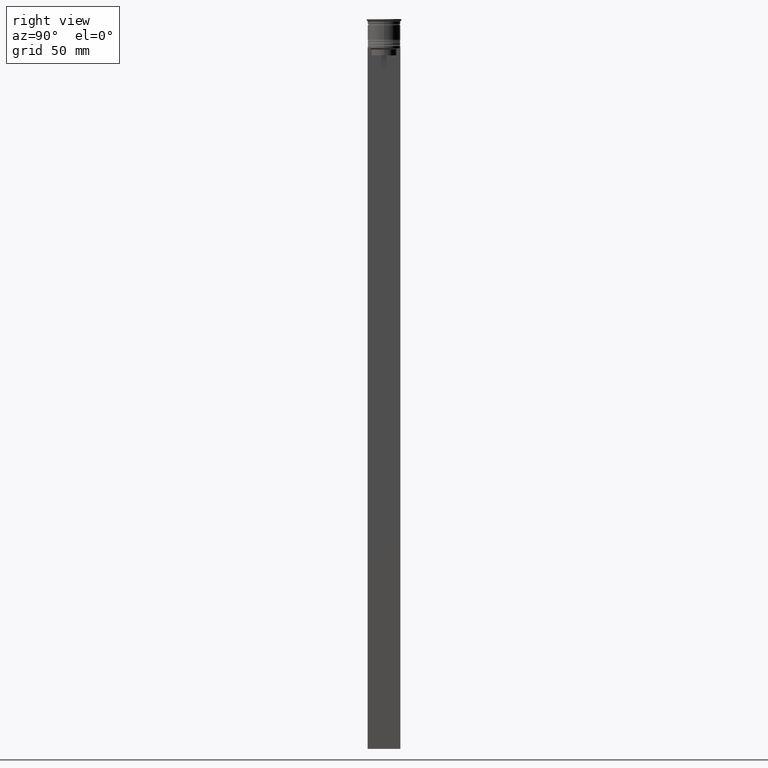
[diagram: clean part render]
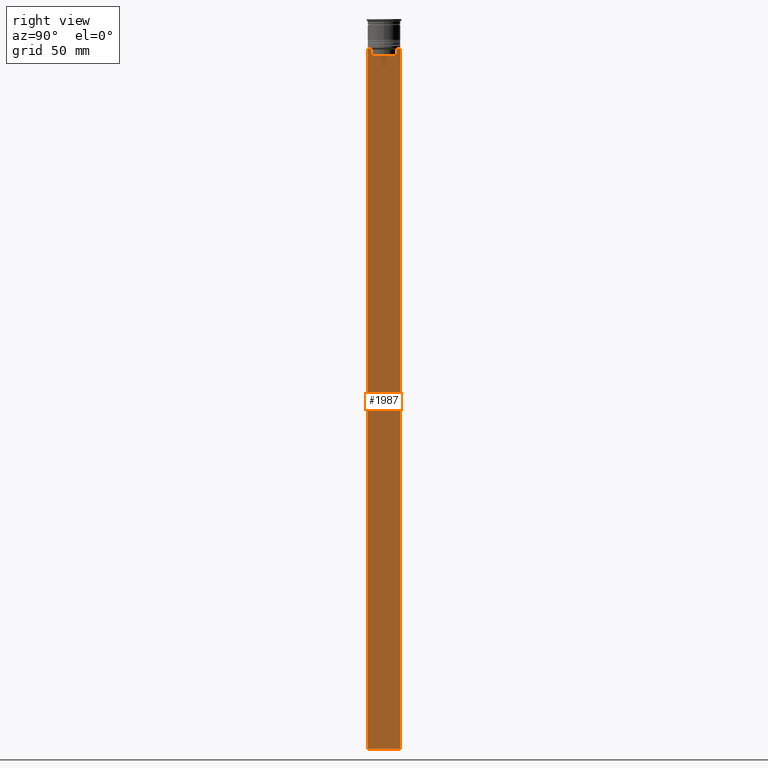
[diagram: same view with one face highlighted and labeled with its STEP entity id]
A machine part, right view. The second image highlights one B-rep face of the part: STEP entity #1987.
In plain terms, the highlighted planar face has unit normal (-1, 0, 0).
Its self-contained STEP definition (entity closure, byte-faithful):
#1 = CARTESIAN_POINT ( 'NONE',  ( 0.5000000000000000000, -6.881860213634102053, -12.50000000000000000 ) ) ;
#6 = VECTOR ( 'NONE', #2449, 1000.000000000000000 ) ;
#63 = VERTEX_POINT ( 'NONE', #2096 ) ;
#79 = LINE ( 'NONE', #491, #1732 ) ;
#96 = CARTESIAN_POINT ( 'NONE',  ( 0.5000000000000000000, 7.000000000000002665, -312.5000000000000000 ) ) ;
#104 = CARTESIAN_POINT ( 'NONE',  ( 0.5000000000000000000, -6.999999999999997335, -12.50000000000000000 ) ) ;
#184 = CARTESIAN_POINT ( 'NONE',  ( 0.5000000000000000000, -5.878775382679629402, -12.50000000000000000 ) ) ;
#214 = EDGE_CURVE ( 'NONE', #377, #698, #1303, .T. ) ;
#270 = CARTESIAN_POINT ( 'NONE',  ( 0.5000000000000000000, 5.711478846560141598, -12.66669470477064685 ) ) ;
#314 = B_SPLINE_CURVE_WITH_KNOTS ( 'NONE', 3,
 ( #1010, #270, #1044, #1219 ),
 .UNSPECIFIED., .F., .F.,
 ( 4, 4 ),
 ( 0.01003009312103698807, 0.01073859663834952557 ),
 .UNSPECIFIED. ) ;
#323 = VECTOR ( 'NONE', #737, 1000.000000000000000 ) ;
#327 = VERTEX_POINT ( 'NONE', #762 ) ;
#344 = DIRECTION ( 'NONE',  ( 0.000000000000000000, -1.000000000000000000, 0.000000000000000000 ) ) ;
#351 = VECTOR ( 'NONE', #2038, 1000.000000000000000 ) ;
#360 = VECTOR ( 'NONE', #344, 1000.000000000000000 ) ;
#367 = ORIENTED_EDGE ( 'NONE', *, *, #1989, .T. ) ;
#377 = VERTEX_POINT ( 'NONE', #1840 ) ;
#380 = CARTESIAN_POINT ( 'NONE',  ( 0.5000000000000000000, -5.376802023508029826, -13.00000000000000178 ) ) ;
#417 = ORIENTED_EDGE ( 'NONE', *, *, #1799, .T. ) ;
#432 = DIRECTION ( 'NONE',  ( 0.000000000000000000, -1.000000000000000000, 0.000000000000000000 ) ) ;
#455 = LINE ( 'NONE', #1216, #1360 ) ;
#465 = CARTESIAN_POINT ( 'NONE',  ( 0.5000000000000000000, -6.999999999999997335, 1.535668847618198329 ) ) ;
#491 = CARTESIAN_POINT ( 'NONE',  ( 0.5000000000000000000, -6.999999999999997335, -12.50000000000000000 ) ) ;
#528 = VERTEX_POINT ( 'NONE', #781 ) ;
#547 = CARTESIAN_POINT ( 'NONE',  ( 0.5000000000000000000, -5.376802023508029826, -13.00000000000000178 ) ) ;
#587 = CARTESIAN_POINT ( 'NONE',  ( 0.5000000000000000000, -6.999999999999997335, -12.50000000000000000 ) ) ;
#636 = EDGE_CURVE ( 'NONE', #1446, #1578, #79, .T. ) ;
#648 = CARTESIAN_POINT ( 'NONE',  ( 0.5000000000000000000, -5.376802023508029826, -15.50000000000000000 ) ) ;
#652 = LINE ( 'NONE', #104, #2097 ) ;
#654 = PLANE ( 'NONE',  #2175 ) ;
#664 = EDGE_CURVE ( 'NONE', #63, #1493, #652, .T. ) ;
#696 = LINE ( 'NONE', #2423, #351 ) ;
#698 = VERTEX_POINT ( 'NONE', #96 ) ;
#710 = VERTEX_POINT ( 'NONE', #1624 ) ;
#737 = DIRECTION ( 'NONE',  ( 0.000000000000000000, 0.000000000000000000, -1.000000000000000000 ) ) ;
#738 = LINE ( 'NONE', #1508, #2045 ) ;
#746 = VERTEX_POINT ( 'NONE', #1994 ) ;
#749 = ORIENTED_EDGE ( 'NONE', *, *, #1301, .T. ) ;
#750 = DIRECTION ( 'NONE',  ( -0.000000000000000000, -0.000000000000000000, 1.000000000000000000 ) ) ;
#762 = CARTESIAN_POINT ( 'NONE',  ( 0.5000000000000000000, 7.000000000000002665, -12.50000000000000000 ) ) ;
#781 = CARTESIAN_POINT ( 'NONE',  ( 0.5000000000000000000, 5.376802023508029826, -15.50000000000000000 ) ) ;
#817 = ORIENTED_EDGE ( 'NONE', *, *, #1639, .T. ) ;
#870 = VECTOR ( 'NONE', #432, 1000.000000000000000 ) ;
#1010 = CARTESIAN_POINT ( 'NONE',  ( 0.5000000000000000000, 5.878775382679629402, -12.50000000000000000 ) ) ;
#1040 = DIRECTION ( 'NONE',  ( -1.000000000000000000, 0.000000000000000000, 0.000000000000000000 ) ) ;
#1043 = ORIENTED_EDGE ( 'NONE', *, *, #1966, .F. ) ;
#1044 = CARTESIAN_POINT ( 'NONE',  ( 0.5000000000000000000, 5.544156989057553275, -12.83336397825725861 ) ) ;
#1056 = LINE ( 'NONE', #1680, #360 ) ;
#1100 = CARTESIAN_POINT ( 'NONE',  ( 0.5000000000000000000, -5.544156999454441959, -12.83336396790503642 ) ) ;
#1107 = VERTEX_POINT ( 'NONE', #648 ) ;
#1122 = DIRECTION ( 'NONE',  ( 0.000000000000000000, 1.000000000000000000, 0.000000000000000000 ) ) ;
#1196 = EDGE_CURVE ( 'NONE', #327, #63, #1056, .T. ) ;
#1216 = CARTESIAN_POINT ( 'NONE',  ( 0.5000000000000000000, 7.000000000000002665, 1.535668847618198329 ) ) ;
#1219 = CARTESIAN_POINT ( 'NONE',  ( 0.5000000000000000000, 5.376802023508029826, -13.00000000000000178 ) ) ;
#1297 = LINE ( 'NONE', #2240, #323 ) ;
#1301 = EDGE_CURVE ( 'NONE', #746, #528, #696, .T. ) ;
#1303 = LINE ( 'NONE', #2355, #2245 ) ;
#1327 = ORIENTED_EDGE ( 'NONE', *, *, #636, .T. ) ;
#1360 = VECTOR ( 'NONE', #1995, 1000.000000000000000 ) ;
#1384 = LINE ( 'NONE', #587, #870 ) ;
#1446 = VERTEX_POINT ( 'NONE', #1 ) ;
#1461 = EDGE_CURVE ( 'NONE', #1493, #746, #314, .T. ) ;
#1493 = VERTEX_POINT ( 'NONE', #2165 ) ;
#1508 = CARTESIAN_POINT ( 'NONE',  ( 0.5000000000000000000, -5.376802023508029826, 0.000000000000000000 ) ) ;
#1578 = VERTEX_POINT ( 'NONE', #1892 ) ;
#1590 = ORIENTED_EDGE ( 'NONE', *, *, #2031, .T. ) ;
#1598 = VERTEX_POINT ( 'NONE', #547 ) ;
#1624 = CARTESIAN_POINT ( 'NONE',  ( 0.5000000000000000000, -5.878775382679629402, -12.50000000000000000 ) ) ;
#1639 = EDGE_CURVE ( 'NONE', #1107, #1598, #738, .T. ) ;
#1644 = EDGE_CURVE ( 'NONE', #1598, #710, #2083, .T. ) ;
#1655 = ORIENTED_EDGE ( 'NONE', *, *, #214, .T. ) ;
#1680 = CARTESIAN_POINT ( 'NONE',  ( 0.5000000000000000000, -6.999999999999997335, -12.50000000000000000 ) ) ;
#1684 = ORIENTED_EDGE ( 'NONE', *, *, #1196, .T. ) ;
#1692 = CARTESIAN_POINT ( 'NONE',  ( 0.5000000000000000000, -5.711478856069293286, -12.66669469529570335 ) ) ;
#1712 = DIRECTION ( 'NONE',  ( 0.000000000000000000, 0.000000000000000000, 1.000000000000000000 ) ) ;
#1732 = VECTOR ( 'NONE', #1827, 1000.000000000000000 ) ;
#1799 = EDGE_CURVE ( 'NONE', #710, #1446, #1384, .T. ) ;
#1826 = ORIENTED_EDGE ( 'NONE', *, *, #1644, .T. ) ;
#1827 = DIRECTION ( 'NONE',  ( 0.000000000000000000, -1.000000000000000000, 0.000000000000000000 ) ) ;
#1840 = CARTESIAN_POINT ( 'NONE',  ( 0.5000000000000000000, -6.999999999999997335, -312.5000000000000000 ) ) ;
#1892 = CARTESIAN_POINT ( 'NONE',  ( 0.5000000000000000000, -6.999999999999997335, -12.50000000000000000 ) ) ;
#1966 = EDGE_CURVE ( 'NONE', #327, #698, #455, .T. ) ;
#1987 = ADVANCED_FACE ( 'NONE', ( #2395 ), #654, .F. ) ;
#1989 = EDGE_CURVE ( 'NONE', #528, #1107, #2067, .T. ) ;
#1994 = CARTESIAN_POINT ( 'NONE',  ( 0.5000000000000000000, 5.376802023508029826, -13.00000000000000178 ) ) ;
#1995 = DIRECTION ( 'NONE',  ( 0.000000000000000000, 0.000000000000000000, -1.000000000000000000 ) ) ;
#2031 = EDGE_CURVE ( 'NONE', #1578, #377, #1297, .T. ) ;
#2037 = ORIENTED_EDGE ( 'NONE', *, *, #1461, .T. ) ;
#2038 = DIRECTION ( 'NONE',  ( 0.000000000000000000, 0.000000000000000000, -1.000000000000000000 ) ) ;
#2045 = VECTOR ( 'NONE', #750, 1000.000000000000000 ) ;
#2067 = LINE ( 'NONE', #2479, #6 ) ;
#2083 = B_SPLINE_CURVE_WITH_KNOTS ( 'NONE', 3,
 ( #380, #1100, #1692, #184 ),
 .UNSPECIFIED., .F., .F.,
 ( 4, 4 ),
 ( 0.02539176325380714666, 0.02610162431828674801 ),
 .UNSPECIFIED. ) ;
#2096 = CARTESIAN_POINT ( 'NONE',  ( 0.5000000000000000000, 6.881860213634102053, -12.50000000000000000 ) ) ;
#2097 = VECTOR ( 'NONE', #2367, 1000.000000000000000 ) ;
#2165 = CARTESIAN_POINT ( 'NONE',  ( 0.5000000000000000000, 5.878775382679629402, -12.50000000000000000 ) ) ;
#2175 = AXIS2_PLACEMENT_3D ( 'NONE', #465, #1040, #1712 ) ;
#2219 = EDGE_LOOP ( 'NONE', ( #2284, #2037, #749, #367, #817, #1826, #417, #1327, #1590, #1655, #1043, #1684 ) ) ;
#2240 = CARTESIAN_POINT ( 'NONE',  ( 0.5000000000000000000, -6.999999999999997335, 1.535668847618198329 ) ) ;
#2245 = VECTOR ( 'NONE', #1122, 1000.000000000000000 ) ;
#2284 = ORIENTED_EDGE ( 'NONE', *, *, #664, .T. ) ;
#2355 = CARTESIAN_POINT ( 'NONE',  ( 0.5000000000000000000, -6.999999999999997335, -312.5000000000000000 ) ) ;
#2367 = DIRECTION ( 'NONE',  ( 0.000000000000000000, -1.000000000000000000, 0.000000000000000000 ) ) ;
#2395 = FACE_OUTER_BOUND ( 'NONE', #2219, .T. ) ;
#2423 = CARTESIAN_POINT ( 'NONE',  ( 0.5000000000000000000, 5.376802023508029826, 0.000000000000000000 ) ) ;
#2449 = DIRECTION ( 'NONE',  ( 0.000000000000000000, -1.000000000000000000, 0.000000000000000000 ) ) ;
#2479 = CARTESIAN_POINT ( 'NONE',  ( 0.5000000000000000000, 5.400000000000003908, -15.50000000000000000 ) ) ;